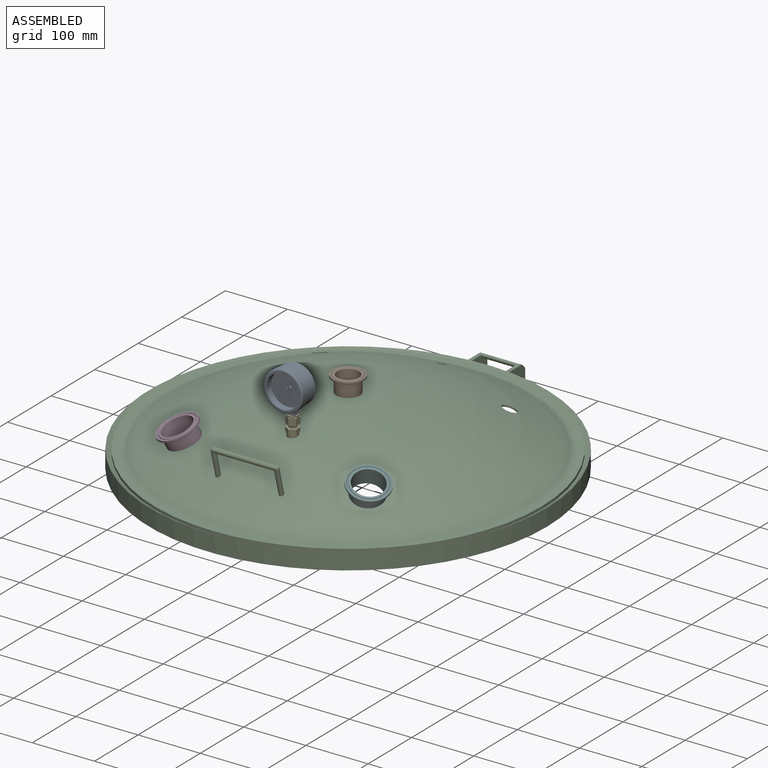
[diagram: assembled view]
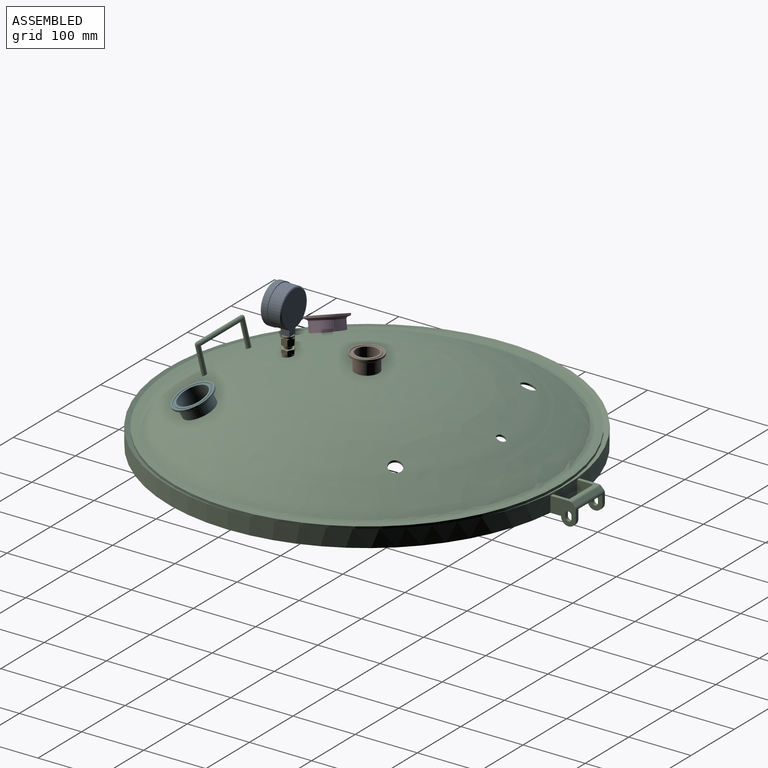
[diagram: assembled view, second angle]
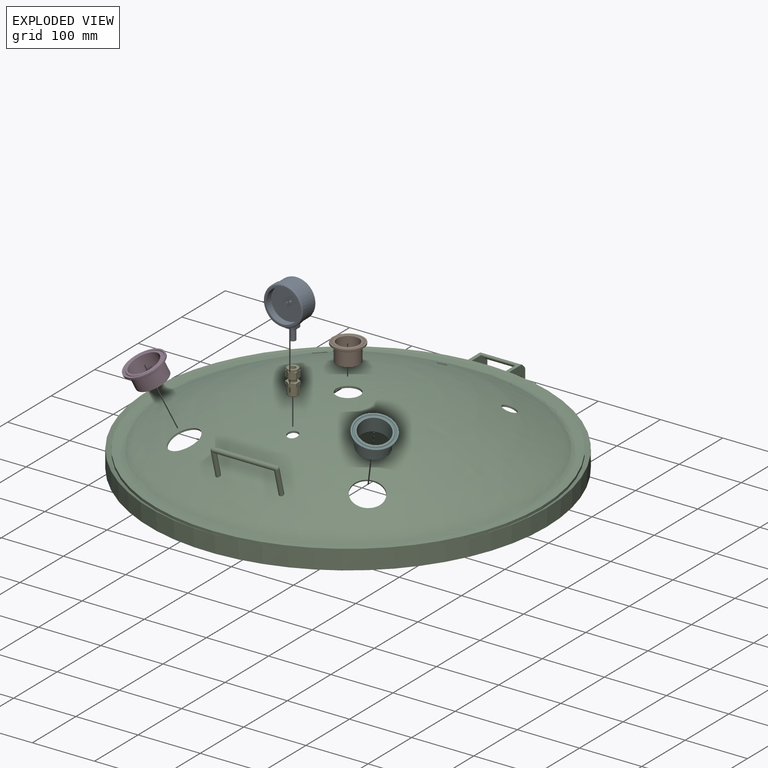
[diagram: exploded view]
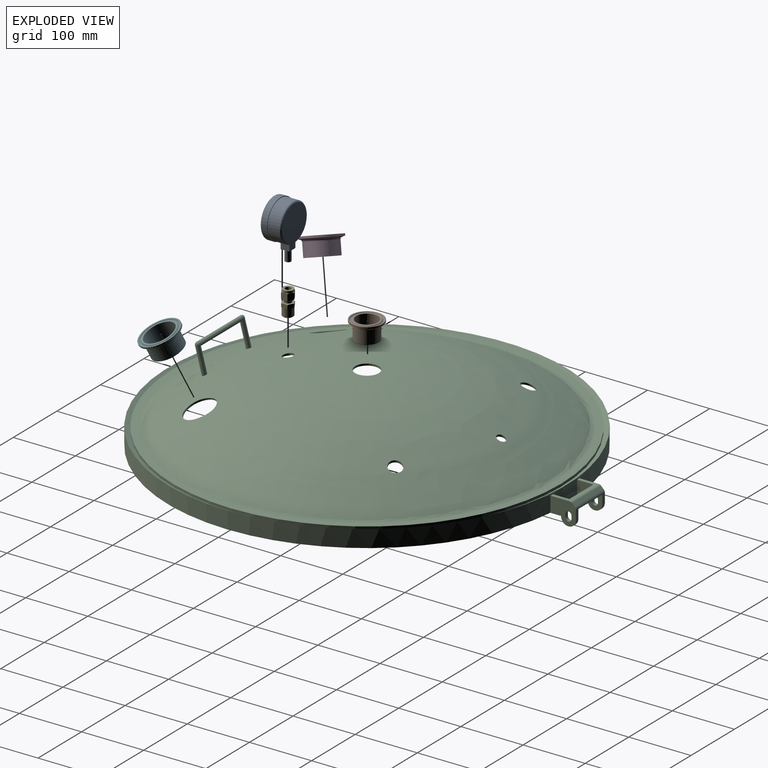
[diagram: exploded view, second angle]
ASSEMBLY  parts=6 mates=5
PART A: 41 faces, bbox 68.2x33x91.9 mm
  f0: cylinder r=4.76mm len=17.78mm, axis (0,0,1), area 532mm2, adj f39,f40
  f1: cylinder r=21.84mm len=43.69mm, axis (0,1,0), area 12.6mm2, adj f14,f36,f37,f38
  f2: cylinder r=21.72mm len=43.43mm, axis (0,1,0), area 12.5mm2, adj f14,f33,f34,f38
  f3: cylinder r=0.45mm len=3.81mm, axis (0,1,0), area 10.7mm2, adj f24,f31
  f4: cylinder r=1.91mm len=3.81mm, axis (0,1,0), area 15.5mm2, adj f14,f24,f28,f29
  f5: torus R=28mm, axis (0,1,0), area 722.1mm2, adj f9,f17,f19,f22,f23
  f6: cylinder r=26.5mm len=53mm, axis (0,1,0), area 1914.8mm2, adj f14,f15
  f7: torus R=29mm, axis (0,1,0), area 754.8mm2, adj f8,f15
  f8: cylinder r=31.5mm len=63mm, axis (0,-1,0), area 1781.3mm2, adj f7,f16
  f9: cylinder r=30.5mm len=61mm, axis (0,1,0), area 3388.5mm2, adj f5,f16,f18,f20,f21
  f10: plane 14.03x9.34mm, normal (1,0,0), area 130.5mm2, adj f12,f13,f18,f21,f23,f39
  f11: plane 14.03x9.34mm, normal (-1,0,0), area 130.5mm2, adj f12,f13,f18,f20,f23,f39
  f12: plane 13.97x9.03mm, normal (0,-1,0), area 118.9mm2, adj f10,f11,f18,f39
  f13: plane 13.97x9.11mm, normal (0,1,0), area 119.9mm2, adj f10,f11,f23,f39
  f14: plane 53x53mm, normal (0,-1,0), area 2153.2mm2, adj f1,f2,f4,f6,f25,f26,f27,f28
  f15: plane 58x58mm, normal (0,-1,0), area 435.9mm2, adj f6,f7
  f16: plane 63x63mm, normal (0,1,0), area 194.8mm2, adj f8,f9
  f17: plane 56x56mm, normal (0,1,0), area 2463mm2, adj f5
  f18: torus R=31.77mm, axis (0,1,0), area 29.6mm2, adj f9,f10,f11,f12,f20,f21
  f19: bspline ~0.57x0.57mm, area 0.2mm2, adj f5,f20,f23
  f20: cylinder r=1.27mm len=15.76mm, axis (0,1,0), area 24.9mm2, adj f9,f11,f18,f19,f23
  f21: cylinder r=1.27mm len=15.76mm, axis (0,1,0), area 24.9mm2, adj f9,f10,f18,f22,f23
  f22: bspline ~0.57x0.57mm, area 0.2mm2, adj f5,f21,f23
  f23: torus R=31.69mm, axis (0,-1,0), area 25.6mm2, adj f5,f10,f11,f13,f19,f20,f21,f22
  f24: plane 22.22x18.93mm, normal (0,-1,0), area 39.5mm2, adj f3,f4,f25,f26,f27,f28,f29,f30
  f25: cylinder r=1.91mm len=3.81mm, axis (0,1,0), area 15.5mm2, adj f14,f24,f26,f30
  f26: plane 4.77x3.81mm, normal (0.61,0,-0.79), area 22.9mm2, adj f14,f24,f25,f27
  f27: plane 3.81x1.95mm, normal (0.77,0,0.64), area 9.7mm2, adj f14,f24,f26,f28
  f28: plane 4.42x4.06mm, normal (-0.68,0,0.74), area 22.9mm2, adj f4,f14,f24,f27
  f29: plane 13.71x12.61mm, normal (-0.68,0,0.74), area 71mm2, adj f4,f14,f24,f30
  f30: plane 14.8x11.32mm, normal (0.61,0,-0.79), area 71mm2, adj f14,f24,f25,f29
  f31: plane 0.9x0.9mm, normal (0,-1,0), area 0.6mm2, adj f3
  f32: plane 0.13x0.1mm, normal (0.77,0,0.64), area 0mm2, adj f14,f33,f37,f38
  f33: plane 0.88x0.73mm, normal (-0.64,0,0.77), area 0.1mm2, adj f2,f14,f32,f38
  f34: plane 0.88x0.73mm, normal (0.64,0,0.77), area 0.1mm2, adj f2,f14,f35,f38
  f35: plane 0.13x0.1mm, normal (-0.77,0,0.64), area 0mm2, adj f14,f34,f36,f38
  f36: plane 0.97x0.82mm, normal (-0.64,0,-0.77), area 0.2mm2, adj f1,f14,f35,f38
  f37: plane 0.97x0.82mm, normal (0.64,0,-0.77), area 0.2mm2, adj f1,f14,f32,f38
  f38: plane 43.69x35.89mm, normal (0,-1,0), area 12.8mm2, adj f1,f2,f32,f33,f34,f35,f36,f37
  f39: plane 13.97x13.97mm, normal (0,0,-1), area 123.9mm2, adj f0,f10,f11,f12,f13
  f40: plane 9.53x9.53mm, normal (0,0,-1), area 71.3mm2, adj f0
PART B: 13 faces, bbox 51.5x28.6x51.5 mm
  f0: cylinder r=25.2mm len=50.39mm, axis (0,-1,0), area 450.4mm2, adj f1,f10
  f1: cone r=21.14mm half-angle=70deg, axis (0,-1,0), area 628.6mm2, adj f0,f2
  f2: torus R=22.23mm, axis (0,-1,0), area 482.2mm2, adj f1,f3
  f3: cylinder r=19.05mm len=38.1mm, axis (0,-1,0), area 2545.9mm2, adj f2,f12
  f4: cylinder r=17.4mm len=34.8mm, axis (0,-1,0), area 3123.9mm2, adj f11,f12
  f5: torus R=19.83mm, axis (0,-1,0), area 117.1mm2, adj f6,f11
  f6: cone r=20.72mm half-angle=23deg, axis (0,1,0), area 55.4mm2, adj f5,f7
  f7: torus R=21.82mm, axis (0,-1,0), area 382.8mm2, adj f6,f8
  f8: cone r=23.08mm half-angle=23deg, axis (0,-1,0), area 61.7mm2, adj f7,f9
  f9: torus R=23.81mm, axis (0,-1,0), area 135.4mm2, adj f8,f10
  f10: plane 50.39x50.39mm, normal (0,-1,0), area 213.6mm2, adj f0,f9
  f11: plane 39.66x39.66mm, normal (0,-1,0), area 284.1mm2, adj f4,f5
  f12: plane 38.1x38.1mm, normal (0,1,0), area 189.1mm2, adj f3,f4
PART C: 47 faces, bbox 647.2x682.9x122.3 mm
  f0: revolved ~597.92x597.92mm, area 295995.9mm2, adj f11,f35,f36,f37,f38,f39,f40,f41
  f1: revolved ~587.69x587.69mm, area 578395.9mm2, adj f12,f35,f36,f37,f38,f39,f45,f46
  f2: cylinder r=319.91mm len=639.83mm, axis (0,0,-1), area 55263.5mm2, adj f8,f9,f13,f20,f21,f27,f28
  f3: cylinder r=298.96mm len=597.92mm, axis (0,0,-1), area 28856.4mm2, adj f4,f12
  f4: plane 609.6x609.6mm, normal (0,0,-1), area 11080.9mm2, adj f3,f5
  f5: cylinder r=304.8mm len=609.6mm, axis (0,0,-1), area 9899mm2, adj f4,f6
  f6: plane 627.38x627.38mm, normal (0,0,-1), area 17273.7mm2, adj f5,f7
  f7: cylinder r=313.69mm len=627.38mm, axis (0,0,-1), area 10187.8mm2, adj f6,f8
  f8: plane 655.22x639.83mm, normal (0,0,-1), area 12578.7mm2, adj f2,f7,f15,f20,f21,f22,f27,f28
  f9: cone r=319.91mm half-angle=61.9deg, axis (0,0,1), area 18088.4mm2, adj f2,f10
  f10: cylinder r=311.87mm len=623.75mm, axis (0,0,-1), area 8411.6mm2, adj f9,f11
  f11: plane 623.75x623.75mm, normal (0,0,1), area 24785.4mm2, adj f0,f10
  f12: torus R=286.26mm, axis (0,0,-1), area 22065.5mm2, adj f1,f3
  f13: plane 66.48x31.38mm, normal (0,0,1), area 617.2mm2, adj f2,f20,f21,f27,f28,f29,f33
  f14: plane 66.48x15.23mm, normal (0,-1,0), area 222.5mm2, adj f15,f20,f21,f22,f27,f28,f31,f34
  f15: cylinder r=11.99mm len=23.98mm, axis (-1,0,0), area 214.3mm2, adj f8,f14,f20,f21
  f16: plane 5.69x4.82mm, normal (0,1,0), area 27.4mm2, adj f17,f19,f20,f21
  f17: cylinder r=4.88mm len=9.77mm, axis (-1,0,0), area 87.3mm2, adj f16,f18,f20,f21
  f18: plane 5.69x4.82mm, normal (0,-1,0), area 27.4mm2, adj f17,f19,f20,f21
  f19: cylinder r=4.88mm len=9.77mm, axis (-1,0,0), area 87.3mm2, adj f16,f18,f20,f21
  f20: plane 41.1x36.94mm, normal (1,0,0), area 1099.4mm2, adj f2,f8,f13,f14,f15,f16,f17,f18
  f21: plane 40.56x36.94mm, normal (-1,0,0), area 1016.9mm2, adj f2,f8,f13,f14,f15,f16,f17,f18
  f22: cylinder r=11.99mm len=23.98mm, axis (1,0,0), area 214.3mm2, adj f8,f14,f27,f28
  f23: plane 5.69x4.82mm, normal (0,1,0), area 27.4mm2, adj f24,f26,f27,f28
  f24: cylinder r=4.88mm len=9.77mm, axis (1,0,0), area 87.3mm2, adj f23,f25,f27,f28
  f25: plane 5.69x4.82mm, normal (0,-1,0), area 27.4mm2, adj f24,f26,f27,f28
  f26: cylinder r=4.88mm len=9.77mm, axis (1,0,0), area 87.3mm2, adj f23,f25,f27,f28
  f27: plane 41.1x36.94mm, normal (-1,0,0), area 1099.4mm2, adj f2,f8,f13,f14,f22,f23,f24,f25
  f28: plane 40.56x36.94mm, normal (1,0,0), area 1016.9mm2, adj f2,f8,f13,f14,f22,f23,f24,f25
  f29: plane 55.11x1.91mm, normal (0,1,0), area 105mm2, adj f13,f21,f28,f30
  f30: plane 55.11x12.6mm, normal (0,0.57,-0.82), area 844.1mm2, adj f21,f28,f29,f31
  f31: plane 55.11x1.91mm, normal (0,0,-1), area 105mm2, adj f14,f21,f28,f30
  f32: plane 66.48x4.64mm, normal (0,-0.71,0.71), area 436.7mm2, adj f20,f27,f33,f34
  f33: cylinder r=5.08mm len=66.48mm, axis (1,0,0), area 265.3mm2, adj f13,f20,f27,f32
  f34: cylinder r=5.08mm len=66.48mm, axis (-1,0,0), area 265.3mm2, adj f14,f20,f27,f32
  f35: cylinder r=19.05mm len=38.1mm, axis (0,0,-1), area 358.5mm2, adj f0,f1
  f36: cylinder r=8.57mm len=17.15mm, axis (0,0,-1), area 161.6mm2, adj f0,f1
  f37: cylinder r=6.86mm len=13.72mm, axis (0,0,-1), area 129.3mm2, adj f0,f1
  f38: cylinder r=10.67mm len=21.34mm, axis (0,0,-1), area 201mm2, adj f0,f1
  f39: cylinder r=10.67mm len=21.34mm, axis (0,0,-1), area 201.3mm2, adj f0,f1
  f40: cylinder r=3.81mm len=44.18mm, axis (0,-0.26,-0.97), area 996.8mm2, adj f0,f42,f44
  f41: cylinder r=3.81mm len=44.18mm, axis (0,-0.26,-0.97), area 996.8mm2, adj f0,f42,f43
  f42: cylinder r=3.81mm len=101.6mm, axis (-1,0,0), area 2374.1mm2, adj f40,f41,f43,f44
  f43: sphere r=3.81mm, area 45.6mm2, adj f41,f42
  f44: sphere r=3.81mm, area 45.6mm2, adj f40,f42
  f45: cylinder r=24.89mm len=48.92mm, axis (0.3,-0.3,-0.91), area 429.6mm2, adj f0,f1
  f46: cylinder r=24.89mm len=48.92mm, axis (-0.3,-0.3,-0.91), area 429.7mm2, adj f0,f1
PART D: 13 faces, bbox 65.3x28.6x65.3 mm
  f0: cylinder r=31.95mm len=63.91mm, axis (0,-1,0), area 571.1mm2, adj f1,f10
  f1: cone r=27.49mm half-angle=70deg, axis (0,-1,0), area 887.1mm2, adj f0,f2
  f2: torus R=28.57mm, axis (0,-1,0), area 636.9mm2, adj f1,f3
  f3: cylinder r=25.4mm len=50.8mm, axis (0,-1,0), area 3370.9mm2, adj f2,f12
  f4: cylinder r=23.75mm len=47.5mm, axis (0,-1,0), area 4263.9mm2, adj f11,f12
  f5: torus R=26.18mm, axis (0,-1,0), area 153.8mm2, adj f6,f11
  f6: cone r=27.07mm half-angle=23deg, axis (0,1,0), area 72.4mm2, adj f5,f7
  f7: torus R=28.17mm, axis (0,-1,0), area 494.2mm2, adj f6,f8
  f8: cone r=29.43mm half-angle=23deg, axis (0,-1,0), area 78.8mm2, adj f7,f9
  f9: torus R=30.16mm, axis (0,-1,0), area 172.1mm2, adj f8,f10
  f10: plane 63.91x63.91mm, normal (0,-1,0), area 350.1mm2, adj f0,f9
  f11: plane 52.36x52.36mm, normal (0,-1,0), area 381mm2, adj f4,f5
  f12: plane 50.8x50.8mm, normal (0,1,0), area 254.9mm2, adj f3,f4
PART E: 52 faces, bbox 39.9x20.2x20.2 mm
  f0: plane 11.18x8.76mm, normal (0,0.87,0.5), area 107.7mm2, adj f1,f5,f7,f8,f12,f13
  f1: plane 11.18x10.12mm, normal (0,0,1), area 107.7mm2, adj f0,f2,f6,f7,f13,f14
  f2: plane 11.18x8.76mm, normal (0,-0.87,0.5), area 107.7mm2, adj f1,f3,f6,f11,f14,f15
  f3: plane 11.18x8.76mm, normal (0,-0.87,-0.5), area 107.7mm2, adj f2,f4,f10,f11,f15,f16
  f4: plane 11.18x10.12mm, normal (0,0,-1), area 107.7mm2, adj f3,f5,f9,f10,f16,f17
  f5: plane 11.18x8.76mm, normal (0,0.87,-0.5), area 107.7mm2, adj f0,f4,f8,f9,f12,f17
  f6: cone r=9.44mm half-angle=60deg, axis (-1,0,0), area 4.8mm2, adj f1,f2,f18
  f7: cone r=9.44mm half-angle=60deg, axis (-1,0,0), area 4.8mm2, adj f0,f1,f18
  f8: cone r=9.44mm half-angle=60deg, axis (-1,0,0), area 4.8mm2, adj f0,f5,f18
  f9: cone r=9.44mm half-angle=60deg, axis (-1,0,0), area 4.8mm2, adj f4,f5,f18
  f10: cone r=9.44mm half-angle=60deg, axis (-1,0,0), area 4.8mm2, adj f3,f4,f18
  f11: cone r=9.44mm half-angle=60deg, axis (-1,0,0), area 4.8mm2, adj f2,f3,f18
  f12: cone r=9.44mm half-angle=60deg, axis (1,0,0), area 4.8mm2, adj f0,f5,f19
  f13: cone r=9.44mm half-angle=60deg, axis (1,0,0), area 4.8mm2, adj f0,f1,f19
  f14: cone r=9.44mm half-angle=60deg, axis (1,0,0), area 4.8mm2, adj f1,f2,f19
  f15: cone r=9.44mm half-angle=60deg, axis (1,0,0), area 4.8mm2, adj f2,f3,f19
  f16: cone r=9.44mm half-angle=60deg, axis (1,0,0), area 4.8mm2, adj f3,f4,f19
  f17: cone r=9.44mm half-angle=60deg, axis (1,0,0), area 4.8mm2, adj f4,f5,f19
  f18: plane 17.53x17.53mm, normal (1,0,0), area 80.9mm2, adj f6,f7,f8,f9,f10,f11,f20
  f19: cylinder r=8.76mm len=17.53mm, axis (1,0,0), area 167.8mm2, adj f12,f13,f14,f15,f16,f17,f21
  f20: cylinder r=7.14mm len=14.29mm, axis (1,0,0), area 57.5mm2, adj f18,f22
  f21: plane 17.53x17.53mm, normal (-1,0,0), area 170mm2, adj f19,f23
  f22: cone r=6.51mm half-angle=45deg, axis (-1,0,0), area 72.9mm2, adj f20,f24
  f23: cylinder r=4.76mm len=16.76mm, axis (1,0,0), area 501.6mm2, adj f21,f25
  f24: cylinder r=5.88mm len=11.77mm, axis (1,0,0), area 93.9mm2, adj f22,f26
  f25: plane 9.53x9.53mm, normal (-1,0,0), area 31.5mm2, adj f23,f27
  f26: plane 17.46x17.46mm, normal (-1,0,0), area 130.7mm2, adj f24,f28,f29,f30,f31,f32,f33
  f27: cylinder r=3.56mm len=9.65mm, axis (-1,0,0), area 215.7mm2, adj f25,f34
  f28: cone r=9.41mm half-angle=65deg, axis (1,0,0), area 4.5mm2, adj f26,f35,f36
  f29: cone r=9.41mm half-angle=65deg, axis (1,0,0), area 4.5mm2, adj f26,f36,f37
  f30: cone r=9.41mm half-angle=65deg, axis (1,0,0), area 4.5mm2, adj f26,f37,f38
  f31: cone r=9.41mm half-angle=65deg, axis (1,0,0), area 4.5mm2, adj f26,f38,f40
  f32: cone r=9.41mm half-angle=65deg, axis (1,0,0), area 4.5mm2, adj f26,f35,f39
  f33: cone r=9.41mm half-angle=65deg, axis (1,0,0), area 4.5mm2, adj f26,f39,f40
  f34: plane 10.67x10.67mm, normal (1,0,0), area 49.7mm2, adj f27,f41
  f35: plane 8.73x6.35mm, normal (0,-0.87,-0.5), area 59.7mm2, adj f28,f32,f36,f39,f42,f43
  f36: plane 8.73x6.35mm, normal (0,-0.87,0.5), area 59.7mm2, adj f28,f29,f35,f37,f43,f44
  f37: plane 10.08x6.35mm, normal (0,0,1), area 59.7mm2, adj f29,f30,f36,f38,f44,f45
  f38: plane 8.73x6.35mm, normal (0,0.87,0.5), area 59.7mm2, adj f30,f31,f37,f40,f45,f46
  f39: plane 10.08x6.35mm, normal (0,0,-1), area 59.7mm2, adj f32,f33,f35,f40,f42,f47
  f40: plane 8.73x6.35mm, normal (0,0.87,-0.5), area 59.7mm2, adj f31,f33,f38,f39,f46,f47
  f41: cylinder r=5.33mm len=13.46mm, axis (-1,0,0), area 451.2mm2, adj f34,f48
  f42: cone r=9.41mm half-angle=65deg, axis (-1,0,0), area 4.5mm2, adj f35,f39,f50
  f43: cone r=9.41mm half-angle=65deg, axis (-1,0,0), area 4.5mm2, adj f35,f36,f50
  f44: cone r=9.41mm half-angle=65deg, axis (-1,0,0), area 4.5mm2, adj f36,f37,f50
  f45: cone r=9.41mm half-angle=65deg, axis (-1,0,0), area 4.5mm2, adj f37,f38,f50
  f46: cone r=9.41mm half-angle=65deg, axis (-1,0,0), area 4.5mm2, adj f38,f40,f50
  f47: cone r=9.41mm half-angle=65deg, axis (-1,0,0), area 4.5mm2, adj f39,f40,f50
  f48: plane 13.97x13.97mm, normal (1,0,0), area 63.9mm2, adj f41,f49
  f49: cone r=7.78mm half-angle=52.5deg, axis (-1,0,0), area 97.8mm2, adj f48,f51
  f50: plane 17.46x17.46mm, normal (1,0,0), area 8.6mm2, adj f42,f43,f44,f45,f46,f47,f51
  f51: cylinder r=8.57mm len=17.15mm, axis (-1,0,0), area 700.5mm2, adj f49,f50
PART F: same geometry as D
PLACE A t=(-326.53,-29.57,-493.02)mm
PLACE B rot(axis=(-1,0,0),90deg) t=(-326.53,120.43,-525.19)mm
PLACE C rot(axis=(0,0,1),180deg) t=(-326.53,120.43,-661.06)mm
PLACE D rot(axis=(-0.97,-0.15,-0.2),73.6deg) t=(-480.67,-52.18,-575.94)mm
PLACE E rot(axis=(-0.71,0,0.71),180deg) t=(-326.53,-6.57,-533.55)mm
PLACE F rot(axis=(-0.97,0.15,0.2),73.6deg) t=(-172.39,-52.18,-575.94)mm
MATE fastened C.f2 <-> B.f0  axis (0,0,-1) through (-326.53,120.43,-553.77)mm
MATE fastened F.f0 <-> C.f45  axis (-0.3,0.3,-0.91) through (-180.93,-43.64,-601.84)mm
MATE fastened E.f23 <-> A.f0  axis (0,0,-1) through (-326.53,-6.57,-541.93)mm
MATE fastened D.f0 <-> C.f46  axis (0.3,0.3,-0.91) through (-472.13,-43.64,-601.84)mm
MATE fastened E.f51 <-> C.f36  axis (0,0,1) through (-326.53,-6.57,-565.71)mm
